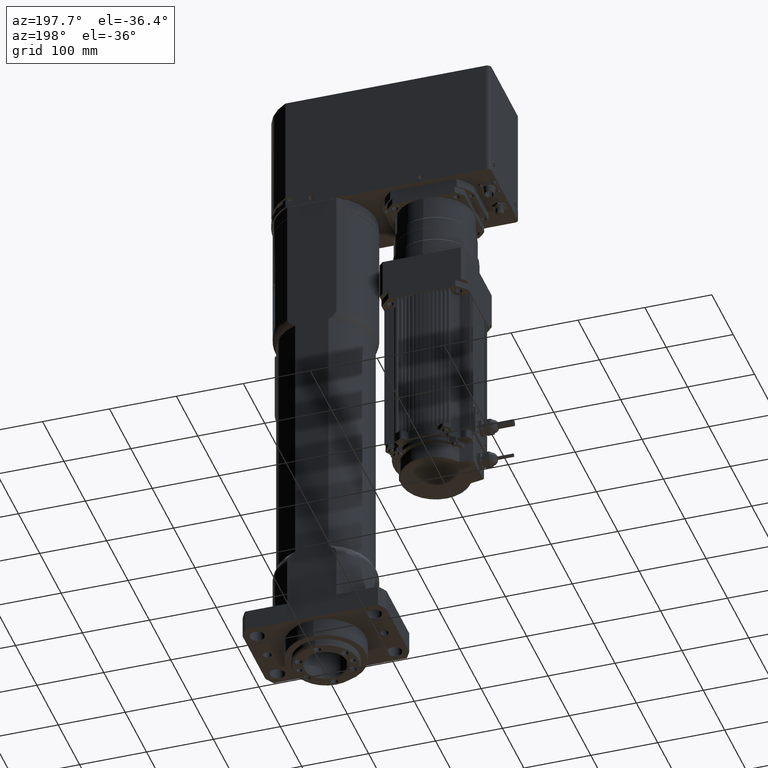
[diagram: clean part render]
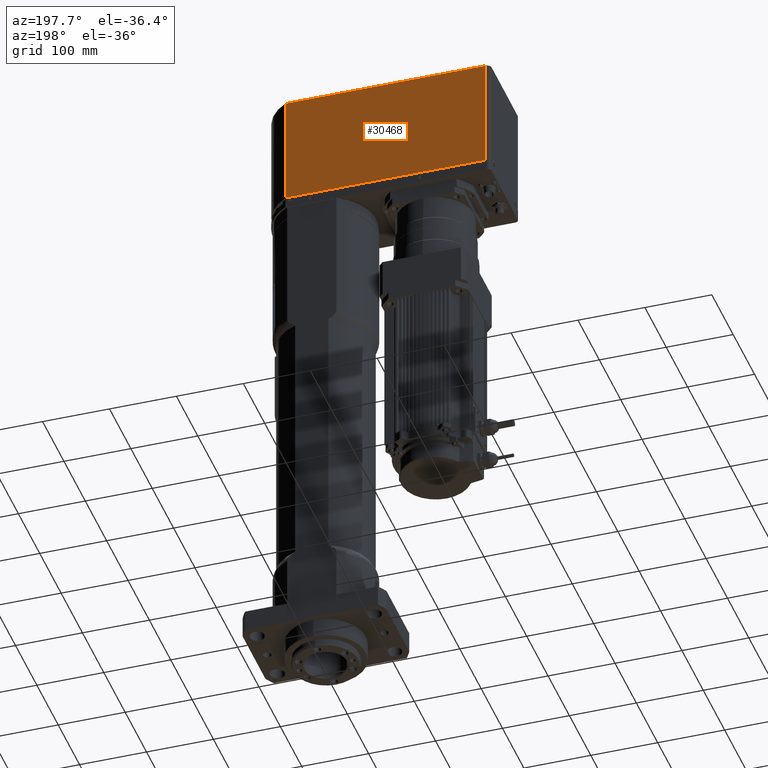
[diagram: same view with one face highlighted and labeled with its STEP entity id]
A machine part, auxiliary view. The second image highlights one B-rep face of the part: STEP entity #30468.
In plain terms, the highlighted planar face has unit normal (-0, 1, -0).
Its self-contained STEP definition (entity closure, byte-faithful):
#884=PLANE('',#32599);
#3014=FACE_OUTER_BOUND('',#4842,.T.);
#4842=EDGE_LOOP('',(#23109,#23110,#23111,#23112,#23113));
#6751=LINE('',#51518,#9331);
#6990=LINE('',#53262,#9570);
#6994=LINE('',#53274,#9574);
#7001=LINE('',#53296,#9581);
#7002=LINE('',#53298,#9582);
#9331=VECTOR('',#36391,10.);
#9570=VECTOR('',#37366,10.);
#9574=VECTOR('',#37380,10.);
#9581=VECTOR('',#37405,10.);
#9582=VECTOR('',#37408,10.);
#12941=VERTEX_POINT('',#51026);
#13079=VERTEX_POINT('',#51475);
#13375=VERTEX_POINT('',#53261);
#13378=VERTEX_POINT('',#53273);
#13384=VERTEX_POINT('',#53294);
#16358=EDGE_CURVE('',#13079,#12941,#6751,.T.);
#16844=EDGE_CURVE('',#13375,#13079,#6990,.T.);
#16850=EDGE_CURVE('',#13375,#13378,#6994,.T.);
#16862=EDGE_CURVE('',#12941,#13384,#7001,.T.);
#16863=EDGE_CURVE('',#13378,#13384,#7002,.T.);
#23109=ORIENTED_EDGE('',*,*,#16844,.T.);
#23110=ORIENTED_EDGE('',*,*,#16358,.T.);
#23111=ORIENTED_EDGE('',*,*,#16862,.T.);
#23112=ORIENTED_EDGE('',*,*,#16863,.F.);
#23113=ORIENTED_EDGE('',*,*,#16850,.F.);
#30468=ADVANCED_FACE('',(#3014),#884,.T.);
#32599=AXIS2_PLACEMENT_3D('',#53297,#37406,#37407);
#36391=DIRECTION('',(-8.01315642614942E-16,1.,-7.95620553405098E-17));
#37366=DIRECTION('',(-8.01315642614942E-16,1.,-7.95620553405098E-17));
#37380=DIRECTION('',(8.00718342386111E-17,7.95620553405099E-17,1.));
#37405=DIRECTION('',(8.00718342386111E-17,7.95620553405099E-17,1.));
#37406=DIRECTION('center_axis',(1.,8.01315642614942E-16,-8.00718342386112E-17));
#37407=DIRECTION('ref_axis',(-8.01315642614942E-16,1.,-7.95620553405098E-17));
#37408=DIRECTION('',(-8.01315642614942E-16,1.,-7.95620553405098E-17));
#51026=CARTESIAN_POINT('',(67.4999999999999,260.4,750.));
#51475=CARTESIAN_POINT('',(67.5000000000001,-28.142833017344,750.));
#51518=CARTESIAN_POINT('',(67.5000000000002,-39.086442662386,750.));
#53261=CARTESIAN_POINT('',(67.5000000000002,-39.086442662386,750.));
#53262=CARTESIAN_POINT('',(67.5000000000002,-39.086442662386,750.));
#53273=CARTESIAN_POINT('',(67.5000000000002,-39.086442662386,917.));
#53274=CARTESIAN_POINT('',(67.5000000000002,-39.086442662386,750.));
#53294=CARTESIAN_POINT('',(67.4999999999999,260.4,917.));
#53296=CARTESIAN_POINT('',(67.4999999999999,260.4,750.));
#53297=CARTESIAN_POINT('Origin',(67.5000000000002,-39.086442662386,750.));
#53298=CARTESIAN_POINT('',(67.5000000000002,-39.086442662386,917.));